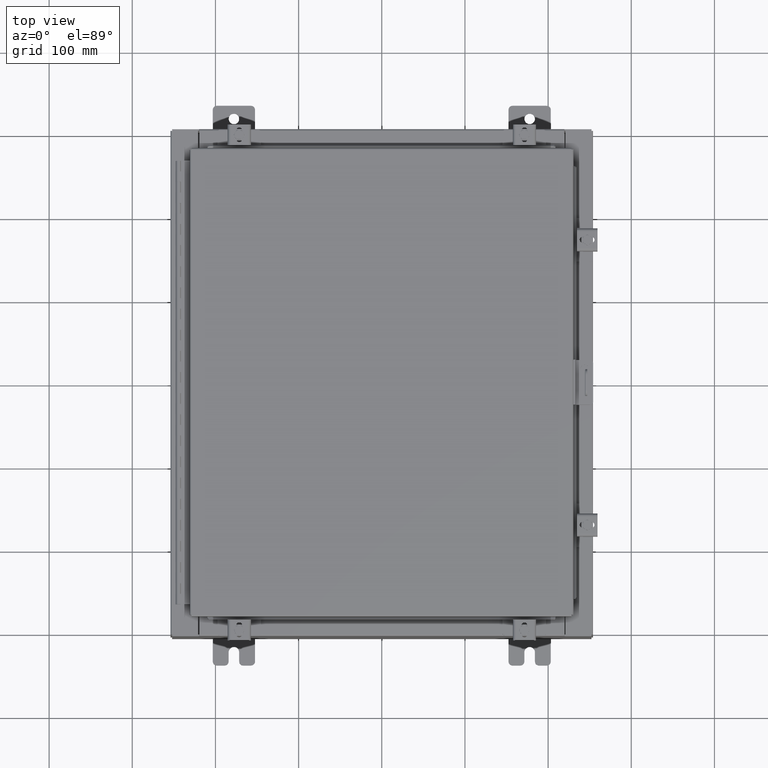
[diagram: clean part render]
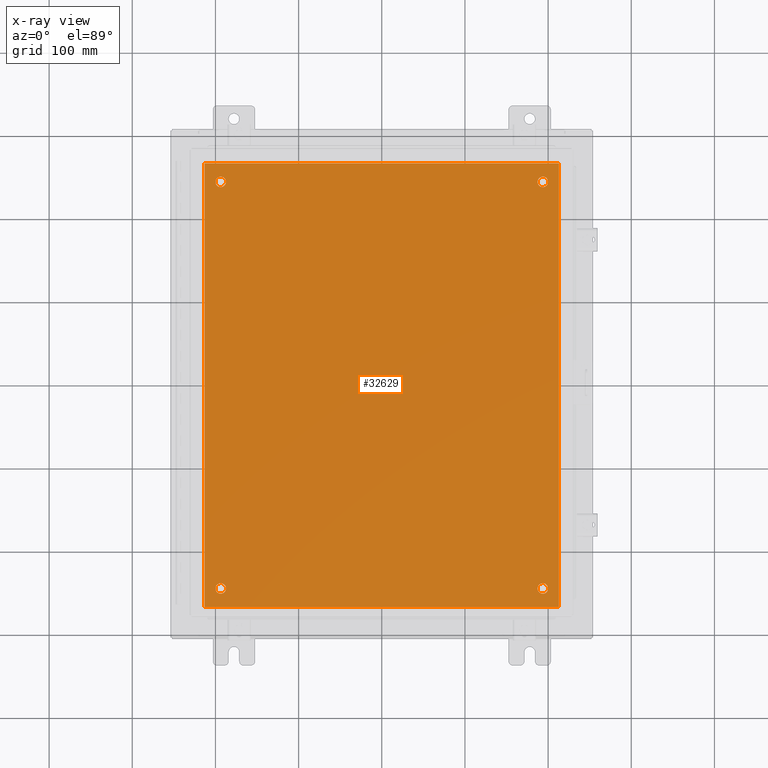
[diagram: x-ray — body ghosted, one internal face saturated and labeled with its STEP entity id]
A machine part, top view, then the same camera in x-ray: the body is ghosted and one INTERNAL B-rep face — a face not visible from any outside direction — is saturated and labeled: STEP entity #32629.
In plain terms, the highlighted planar face has unit normal (0, 0, -1).
Its self-contained STEP definition (entity closure, byte-faithful):
#32 = EDGE_CURVE ( 'NONE', #28406, #20731, #14717, .T. ) ;
#661 = DIRECTION ( 'NONE',  ( 1.000000000000000000, 0.0000000000000000000, 0.0000000000000000000 ) ) ;
#828 = DIRECTION ( 'NONE',  ( -1.000000000000000000, -0.0000000000000000000, -0.0000000000000000000 ) ) ;
#1023 = AXIS2_PLACEMENT_3D ( 'NONE', #28660, #15982, #29977 ) ;
#1109 = CIRCLE ( 'NONE', #1023, 0.2499999999999987000 ) ;
#1243 = CARTESIAN_POINT ( 'NONE',  ( -8.383000000000002700, 10.50000000000000200, -0.1039999999999998100 ) ) ;
#1456 = ORIENTED_EDGE ( 'NONE', *, *, #3514, .T. ) ;
#1927 = CARTESIAN_POINT ( 'NONE',  ( -8.500000000000001800, 10.50000000000000200, -0.1039999999999999800 ) ) ;
#2264 = ORIENTED_EDGE ( 'NONE', *, *, #32, .T. ) ;
#2640 = VECTOR ( 'NONE', #661, 39.37007874015748100 ) ;
#3449 = EDGE_CURVE ( 'NONE', #20731, #28406, #11214, .T. ) ;
#3514 = EDGE_CURVE ( 'NONE', #17280, #27303, #22217, .T. ) ;
#3644 = FACE_BOUND ( 'NONE', #14286, .T. ) ;
#4162 = DIRECTION ( 'NONE',  ( -0.0000000000000000000, -0.0000000000000000000, 1.000000000000000000 ) ) ;
#4557 = DIRECTION ( 'NONE',  ( -1.000000000000000000, 0.0000000000000000000, 0.0000000000000000000 ) ) ;
#4582 = FACE_BOUND ( 'NONE', #18569, .T. ) ;
#5488 = AXIS2_PLACEMENT_3D ( 'NONE', #32389, #31177, #29755 ) ;
#5489 = LINE ( 'NONE', #7219, #2640 ) ;
#5616 = VECTOR ( 'NONE', #7662, 39.37007874015748100 ) ;
#5913 = VERTEX_POINT ( 'NONE', #16519 ) ;
#6071 = EDGE_LOOP ( 'NONE', ( #2264, #29910 ) ) ;
#6138 = LINE ( 'NONE', #8053, #5616 ) ;
#6365 = CARTESIAN_POINT ( 'NONE',  ( -7.375000000000004400, -9.625000000000001800, -0.1039999999999999800 ) ) ;
#6445 = VERTEX_POINT ( 'NONE', #7632 ) ;
#6586 = EDGE_CURVE ( 'NONE', #27303, #17280, #25920, .T. ) ;
#7219 = CARTESIAN_POINT ( 'NONE',  ( -8.500000000000001800, -10.50000000000000000, -0.1039999999999999800 ) ) ;
#7313 = DIRECTION ( 'NONE',  ( -1.000000000000000000, 0.0000000000000000000, 0.0000000000000000000 ) ) ;
#7363 = CARTESIAN_POINT ( 'NONE',  ( -8.383000000000002700, -10.50000000000000000, -0.1039999999999998100 ) ) ;
#7369 = FACE_BOUND ( 'NONE', #12313, .T. ) ;
#7632 = CARTESIAN_POINT ( 'NONE',  ( 8.382999999999999100, -10.50000000000000000, -0.1039999999999999800 ) ) ;
#7662 = DIRECTION ( 'NONE',  ( 0.0000000000000000000, -1.000000000000000000, 0.0000000000000000000 ) ) ;
#7687 = EDGE_CURVE ( 'NONE', #25850, #14275, #27962, .T. ) ;
#7842 = AXIS2_PLACEMENT_3D ( 'NONE', #15692, #30591, #13097 ) ;
#8053 = CARTESIAN_POINT ( 'NONE',  ( -8.383000000000002700, 10.50000000000000400, -0.1039999999999998100 ) ) ;
#8113 = CARTESIAN_POINT ( 'NONE',  ( 7.625000000000004400, -9.625000000000001800, -0.1039999999999999800 ) ) ;
#8420 = CARTESIAN_POINT ( 'NONE',  ( 8.382999999999999100, -10.50000000000000200, -0.1039999999999998100 ) ) ;
#8450 = ORIENTED_EDGE ( 'NONE', *, *, #29781, .F. ) ;
#8556 = EDGE_LOOP ( 'NONE', ( #20638, #8450, #29323, #24077 ) ) ;
#9269 = ORIENTED_EDGE ( 'NONE', *, *, #18431, .T. ) ;
#9712 = VERTEX_POINT ( 'NONE', #1243 ) ;
#9751 = AXIS2_PLACEMENT_3D ( 'NONE', #21463, #16859, #27773 ) ;
#11214 = CIRCLE ( 'NONE', #9751, 0.2499999999999998100 ) ;
#11314 = AXIS2_PLACEMENT_3D ( 'NONE', #8113, #16989, #24703 ) ;
#11967 = DIRECTION ( 'NONE',  ( 0.0000000000000000000, 1.000000000000000000, 0.0000000000000000000 ) ) ;
#12313 = EDGE_LOOP ( 'NONE', ( #28226, #9269 ) ) ;
#12811 = CARTESIAN_POINT ( 'NONE',  ( -7.625000000000004400, -9.625000000000001800, -0.1039999999999999800 ) ) ;
#13097 = DIRECTION ( 'NONE',  ( -1.000000000000000000, 0.0000000000000000000, 0.0000000000000000000 ) ) ;
#13699 = EDGE_CURVE ( 'NONE', #5913, #9712, #14335, .T. ) ;
#13838 = ORIENTED_EDGE ( 'NONE', *, *, #15342, .T. ) ;
#14275 = VERTEX_POINT ( 'NONE', #22003 ) ;
#14286 = EDGE_LOOP ( 'NONE', ( #32211, #13838 ) ) ;
#14335 = LINE ( 'NONE', #1927, #19693 ) ;
#14429 = CARTESIAN_POINT ( 'NONE',  ( -7.875000000000003600, -9.625000000000001800, -0.1039999999999999800 ) ) ;
#14717 = CIRCLE ( 'NONE', #25798, 0.2499999999999998100 ) ;
#15342 = EDGE_CURVE ( 'NONE', #30309, #18345, #17744, .T. ) ;
#15384 = CARTESIAN_POINT ( 'NONE',  ( -7.625000000000004400, 9.625000000000001800, -0.1039999999999999800 ) ) ;
#15692 = CARTESIAN_POINT ( 'NONE',  ( -7.625000000000004400, 9.625000000000001800, -0.1039999999999999800 ) ) ;
#15982 = DIRECTION ( 'NONE',  ( -0.0000000000000000000, -0.0000000000000000000, 1.000000000000000000 ) ) ;
#16519 = CARTESIAN_POINT ( 'NONE',  ( 8.382999999999999100, 10.50000000000000200, -0.1039999999999999800 ) ) ;
#16622 = AXIS2_PLACEMENT_3D ( 'NONE', #31108, #31100, #32098 ) ;
#16859 = DIRECTION ( 'NONE',  ( -0.0000000000000000000, -0.0000000000000000000, 1.000000000000000000 ) ) ;
#16989 = DIRECTION ( 'NONE',  ( -0.0000000000000000000, -0.0000000000000000000, 1.000000000000000000 ) ) ;
#17280 = VERTEX_POINT ( 'NONE', #31290 ) ;
#17744 = CIRCLE ( 'NONE', #11314, 0.2499999999999987000 ) ;
#18345 = VERTEX_POINT ( 'NONE', #21558 ) ;
#18431 = EDGE_CURVE ( 'NONE', #14275, #25850, #26847, .T. ) ;
#18569 = EDGE_LOOP ( 'NONE', ( #1456, #22153 ) ) ;
#18804 = CARTESIAN_POINT ( 'NONE',  ( 7.375000000000005300, -9.625000000000001800, -0.1039999999999999800 ) ) ;
#19233 = EDGE_CURVE ( 'NONE', #29796, #6445, #5489, .T. ) ;
#19693 = VECTOR ( 'NONE', #828, 39.37007874015748100 ) ;
#20562 = LINE ( 'NONE', #8420, #25009 ) ;
#20638 = ORIENTED_EDGE ( 'NONE', *, *, #19233, .F. ) ;
#20731 = VERTEX_POINT ( 'NONE', #14429 ) ;
#21463 = CARTESIAN_POINT ( 'NONE',  ( -7.625000000000004400, -9.625000000000001800, -0.1039999999999999800 ) ) ;
#21558 = CARTESIAN_POINT ( 'NONE',  ( 7.875000000000002700, -9.625000000000001800, -0.1039999999999999800 ) ) ;
#22003 = CARTESIAN_POINT ( 'NONE',  ( 7.375000000000005300, 9.625000000000001800, -0.1039999999999999800 ) ) ;
#22153 = ORIENTED_EDGE ( 'NONE', *, *, #6586, .T. ) ;
#22217 = CIRCLE ( 'NONE', #26738, 0.2499999999999998100 ) ;
#22616 = DIRECTION ( 'NONE',  ( -0.0000000000000000000, -0.0000000000000000000, 1.000000000000000000 ) ) ;
#24077 = ORIENTED_EDGE ( 'NONE', *, *, #29496, .F. ) ;
#24703 = DIRECTION ( 'NONE',  ( -1.000000000000000000, 0.0000000000000000000, 0.0000000000000000000 ) ) ;
#24844 = CARTESIAN_POINT ( 'NONE',  ( 7.875000000000002700, 9.625000000000001800, -0.1039999999999999800 ) ) ;
#25009 = VECTOR ( 'NONE', #11967, 39.37007874015748100 ) ;
#25410 = CARTESIAN_POINT ( 'NONE',  ( -7.875000000000003600, 9.625000000000001800, -0.1039999999999999800 ) ) ;
#25798 = AXIS2_PLACEMENT_3D ( 'NONE', #12811, #22616, #31625 ) ;
#25850 = VERTEX_POINT ( 'NONE', #24844 ) ;
#25920 = CIRCLE ( 'NONE', #7842, 0.2499999999999998100 ) ;
#26738 = AXIS2_PLACEMENT_3D ( 'NONE', #15384, #4162, #4557 ) ;
#26847 = CIRCLE ( 'NONE', #16622, 0.2499999999999987000 ) ;
#27303 = VERTEX_POINT ( 'NONE', #25410 ) ;
#27773 = DIRECTION ( 'NONE',  ( -1.000000000000000000, 0.0000000000000000000, 0.0000000000000000000 ) ) ;
#27962 = CIRCLE ( 'NONE', #31527, 0.2499999999999987000 ) ;
#28084 = DIRECTION ( 'NONE',  ( -0.0000000000000000000, -0.0000000000000000000, 1.000000000000000000 ) ) ;
#28226 = ORIENTED_EDGE ( 'NONE', *, *, #7687, .T. ) ;
#28406 = VERTEX_POINT ( 'NONE', #6365 ) ;
#28660 = CARTESIAN_POINT ( 'NONE',  ( 7.625000000000004400, -9.625000000000001800, -0.1039999999999999800 ) ) ;
#28817 = EDGE_CURVE ( 'NONE', #18345, #30309, #1109, .T. ) ;
#29323 = ORIENTED_EDGE ( 'NONE', *, *, #13699, .F. ) ;
#29496 = EDGE_CURVE ( 'NONE', #6445, #5913, #20562, .T. ) ;
#29755 = DIRECTION ( 'NONE',  ( -1.000000000000000000, 0.0000000000000000000, -0.0000000000000000000 ) ) ;
#29781 = EDGE_CURVE ( 'NONE', #9712, #29796, #6138, .T. ) ;
#29796 = VERTEX_POINT ( 'NONE', #7363 ) ;
#29910 = ORIENTED_EDGE ( 'NONE', *, *, #3449, .T. ) ;
#29977 = DIRECTION ( 'NONE',  ( -1.000000000000000000, 0.0000000000000000000, 0.0000000000000000000 ) ) ;
#30301 = FACE_BOUND ( 'NONE', #6071, .T. ) ;
#30309 = VERTEX_POINT ( 'NONE', #18804 ) ;
#30591 = DIRECTION ( 'NONE',  ( -0.0000000000000000000, -0.0000000000000000000, 1.000000000000000000 ) ) ;
#31100 = DIRECTION ( 'NONE',  ( -0.0000000000000000000, -0.0000000000000000000, 1.000000000000000000 ) ) ;
#31108 = CARTESIAN_POINT ( 'NONE',  ( 7.625000000000004400, 9.625000000000001800, -0.1039999999999999800 ) ) ;
#31177 = DIRECTION ( 'NONE',  ( 0.0000000000000000000, 0.0000000000000000000, -1.000000000000000000 ) ) ;
#31290 = CARTESIAN_POINT ( 'NONE',  ( -7.375000000000004400, 9.625000000000001800, -0.1039999999999999800 ) ) ;
#31527 = AXIS2_PLACEMENT_3D ( 'NONE', #32811, #28084, #7313 ) ;
#31625 = DIRECTION ( 'NONE',  ( -1.000000000000000000, 0.0000000000000000000, 0.0000000000000000000 ) ) ;
#31785 = PLANE ( 'NONE',  #5488 ) ;
#31961 = FACE_OUTER_BOUND ( 'NONE', #8556, .T. ) ;
#32098 = DIRECTION ( 'NONE',  ( -1.000000000000000000, 0.0000000000000000000, 0.0000000000000000000 ) ) ;
#32211 = ORIENTED_EDGE ( 'NONE', *, *, #28817, .T. ) ;
#32389 = CARTESIAN_POINT ( 'NONE',  ( 0.0000000000000000000, 0.0000000000000000000, -0.1039999999999999800 ) ) ;
#32629 = ADVANCED_FACE ( 'NONE', ( #30301, #3644, #7369, #4582, #31961 ), #31785, .T. ) ;
#32811 = CARTESIAN_POINT ( 'NONE',  ( 7.625000000000004400, 9.625000000000001800, -0.1039999999999999800 ) ) ;